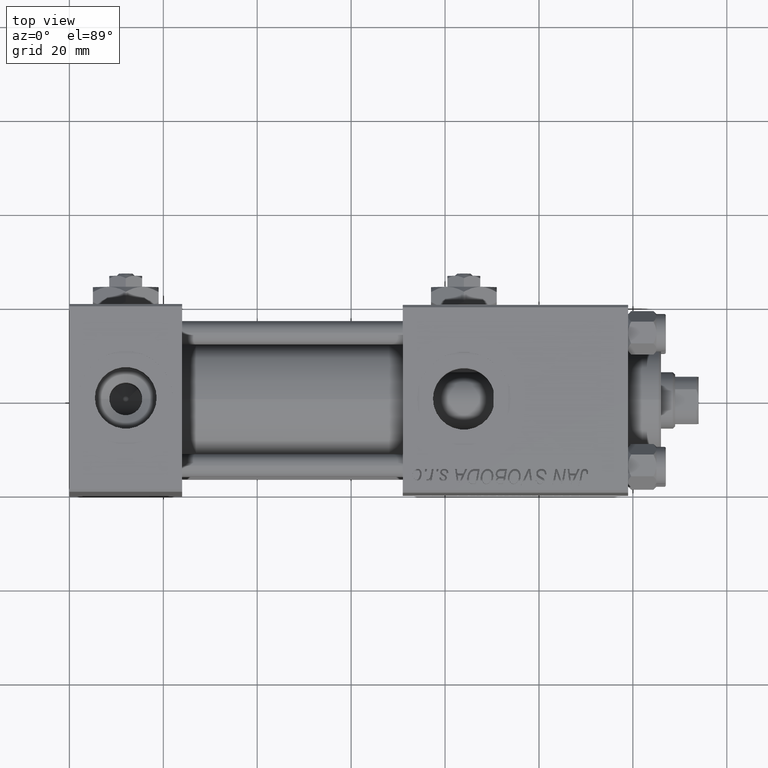
[diagram: clean part render]
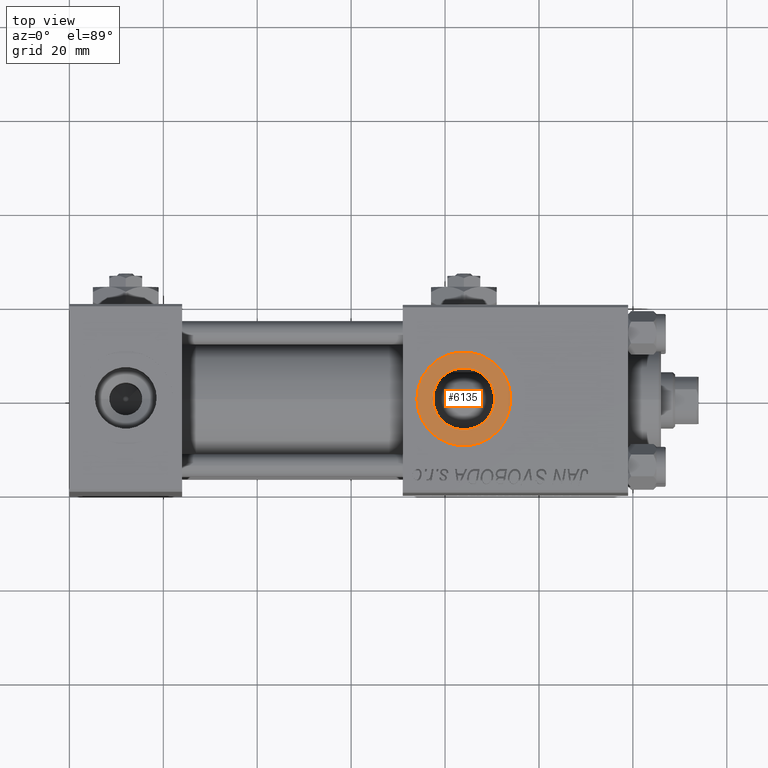
[diagram: same view with one face highlighted and labeled with its STEP entity id]
A machine part, top view. The second image highlights one B-rep face of the part: STEP entity #6135.
In plain terms, the highlighted planar face has unit normal (0, 0, 1).
Its self-contained STEP definition (entity closure, byte-faithful):
#3502 = FACE_OUTER_BOUND ( 'NONE', #13289, .T. ) ;
#3761 = DIRECTION ( 'NONE',  ( 1.000000000000000000, 0.000000000000000000, -0.000000000000000000 ) ) ;
#4527 = CIRCLE ( 'NONE', #11244, 6.580000000000002736 ) ;
#6135 = ADVANCED_FACE ( 'NONE', ( #39478, #3502 ), #19526, .T. ) ;
#6737 = CARTESIAN_POINT ( 'NONE',  ( 94.00000000000162004, -1.734723475976806897E-15, 19.80000000000000071 ) ) ;
#8928 = EDGE_CURVE ( 'NONE', #25018, #19678, #4527, .T. ) ;
#10131 = VERTEX_POINT ( 'NONE', #6737 ) ;
#11178 = DIRECTION ( 'NONE',  ( 1.000000000000000000, 0.000000000000000000, 0.000000000000000000 ) ) ;
#11244 = AXIS2_PLACEMENT_3D ( 'NONE', #47248, #26504, #42524 ) ;
#13289 = EDGE_LOOP ( 'NONE', ( #51018, #20632 ) ) ;
#13562 = ORIENTED_EDGE ( 'NONE', *, *, #8928, .F. ) ;
#13975 = AXIS2_PLACEMENT_3D ( 'NONE', #17108, #33105, #49146 ) ;
#15125 = CARTESIAN_POINT ( 'NONE',  ( 84.00000000000162004, -1.734723475976806897E-15, 19.80000000000000071 ) ) ;
#15391 = EDGE_CURVE ( 'NONE', #19678, #25018, #45002, .T. ) ;
#17108 = CARTESIAN_POINT ( 'NONE',  ( 84.00000000000162004, -1.734723475976807094E-15, 19.80000000000000071 ) ) ;
#18401 = CIRCLE ( 'NONE', #30951, 10.00000000000000888 ) ;
#19161 = CARTESIAN_POINT ( 'NONE',  ( 77.42000000000160753, -9.289058821378484469E-16, 19.80000000000000071 ) ) ;
#19526 = PLANE ( 'NONE',  #27092 ) ;
#19678 = VERTEX_POINT ( 'NONE', #20794 ) ;
#20037 = CARTESIAN_POINT ( 'NONE',  ( 84.00000000000162004, -1.734723475976806897E-15, 19.80000000000000071 ) ) ;
#20632 = ORIENTED_EDGE ( 'NONE', *, *, #42821, .T. ) ;
#20794 = CARTESIAN_POINT ( 'NONE',  ( 90.58000000000161833, -1.734723475976807094E-15, 19.80000000000000071 ) ) ;
#21545 = EDGE_CURVE ( 'NONE', #10131, #31097, #18401, .T. ) ;
#22231 = CIRCLE ( 'NONE', #43241, 10.00000000000000888 ) ;
#22283 = CARTESIAN_POINT ( 'NONE',  ( 74.00000000000160583, -5.100766768294525560E-16, 19.80000000000000071 ) ) ;
#25018 = VERTEX_POINT ( 'NONE', #19161 ) ;
#26504 = DIRECTION ( 'NONE',  ( 0.000000000000000000, 0.000000000000000000, 1.000000000000000000 ) ) ;
#27092 = AXIS2_PLACEMENT_3D ( 'NONE', #20037, #39738, #3761 ) ;
#27925 = ORIENTED_EDGE ( 'NONE', *, *, #15391, .F. ) ;
#30951 = AXIS2_PLACEMENT_3D ( 'NONE', #15125, #47168, #11178 ) ;
#31097 = VERTEX_POINT ( 'NONE', #22283 ) ;
#31103 = DIRECTION ( 'NONE',  ( 1.000000000000000000, 0.000000000000000000, 0.000000000000000000 ) ) ;
#33105 = DIRECTION ( 'NONE',  ( 0.000000000000000000, 0.000000000000000000, 1.000000000000000000 ) ) ;
#39478 = FACE_BOUND ( 'NONE', #41620, .T. ) ;
#39738 = DIRECTION ( 'NONE',  ( 0.000000000000000000, 0.000000000000000000, 1.000000000000000000 ) ) ;
#41620 = EDGE_LOOP ( 'NONE', ( #27925, #13562 ) ) ;
#42524 = DIRECTION ( 'NONE',  ( 1.000000000000000000, 0.000000000000000000, 0.000000000000000000 ) ) ;
#42821 = EDGE_CURVE ( 'NONE', #31097, #10131, #22231, .T. ) ;
#43241 = AXIS2_PLACEMENT_3D ( 'NONE', #50097, #43700, #31103 ) ;
#43700 = DIRECTION ( 'NONE',  ( 0.000000000000000000, 0.000000000000000000, 1.000000000000000000 ) ) ;
#45002 = CIRCLE ( 'NONE', #13975, 6.580000000000002736 ) ;
#47168 = DIRECTION ( 'NONE',  ( 0.000000000000000000, 0.000000000000000000, 1.000000000000000000 ) ) ;
#47248 = CARTESIAN_POINT ( 'NONE',  ( 84.00000000000162004, -1.734723475976807094E-15, 19.80000000000000071 ) ) ;
#49146 = DIRECTION ( 'NONE',  ( 1.000000000000000000, 0.000000000000000000, 0.000000000000000000 ) ) ;
#50097 = CARTESIAN_POINT ( 'NONE',  ( 84.00000000000162004, -1.734723475976806897E-15, 19.80000000000000071 ) ) ;
#51018 = ORIENTED_EDGE ( 'NONE', *, *, #21545, .T. ) ;